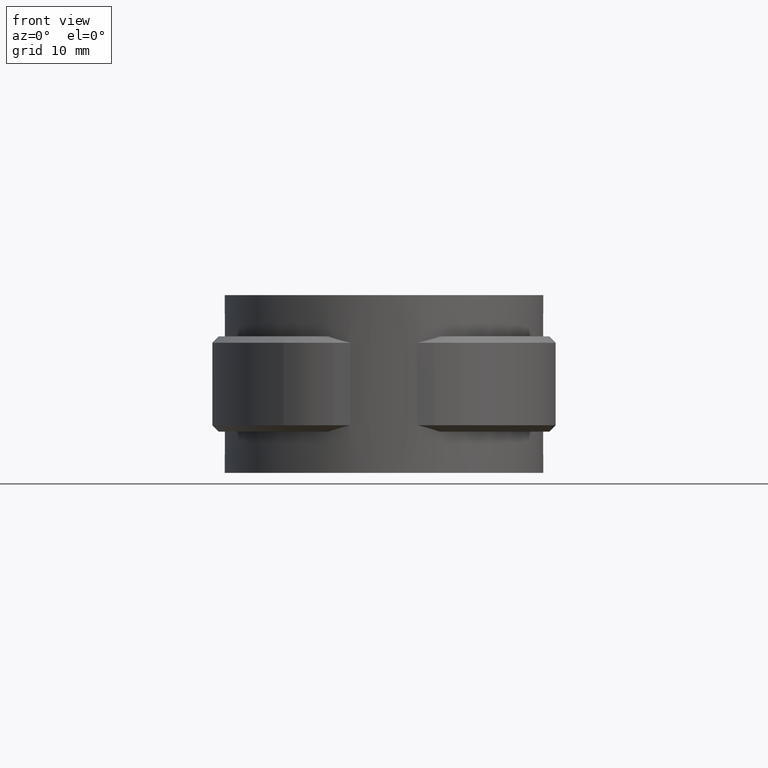
[diagram: clean part render]
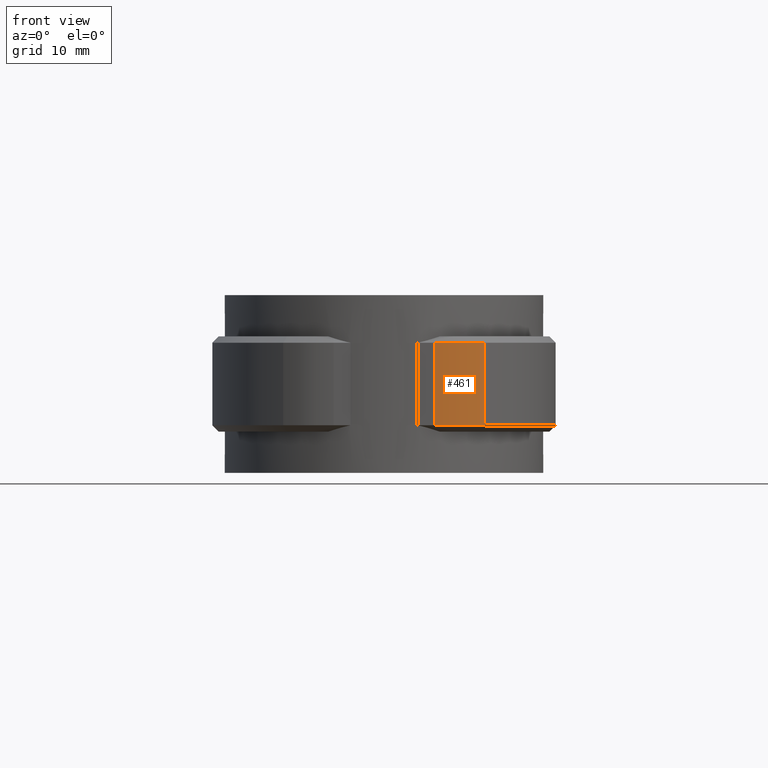
[diagram: same view with one face highlighted and labeled with its STEP entity id]
A machine part, front view. The second image highlights one B-rep face of the part: STEP entity #461.
In plain terms, the highlighted cylindrical surface (partial cylindrical patch) has radius 13.6 mm, axis along (0, 0, 1).
Its self-contained STEP definition (entity closure, byte-faithful):
#461 = ADVANCED_FACE( '', ( #917 ), #918, .T. );
#917 = FACE_OUTER_BOUND( '', #1993, .T. );
#918 = CYLINDRICAL_SURFACE( '', #1994, 13.6000000000000 );
#1993 = EDGE_LOOP( '', ( #4623, #4624, #4625, #4626 ) );
#1994 = AXIS2_PLACEMENT_3D( '', #4627, #4628, #4629 );
#4623 = ORIENTED_EDGE( '', *, *, #6908, .T. );
#4624 = ORIENTED_EDGE( '', *, *, #6915, .T. );
#4625 = ORIENTED_EDGE( '', *, *, #6916, .F. );
#4626 = ORIENTED_EDGE( '', *, *, #6917, .T. );
#4627 = CARTESIAN_POINT( '', ( 7.90550795331962, -10.9370000000000, -20.0000000000000 ) );
#4628 = DIRECTION( '', ( 0.000000000000000, 0.000000000000000, 1.00000000000000 ) );
#4629 = DIRECTION( '', ( 0.209705966713379, 0.977764494919307, 0.000000000000000 ) );
#6908 = EDGE_CURVE( '', #8060, #8058, #8061, .T. );
#6915 = EDGE_CURVE( '', #8058, #8068, #8071, .T. );
#6916 = EDGE_CURVE( '', #7930, #8068, #8072, .T. );
#6917 = EDGE_CURVE( '', #7930, #8060, #8073, .T. );
#7930 = VERTEX_POINT( '', #10995 );
#8058 = VERTEX_POINT( '', #11322 );
#8060 = VERTEX_POINT( '', #11324 );
#8061 = LINE( '', #11325, #11326 );
#8068 = VERTEX_POINT( '', #11337 );
#8071 = CIRCLE( '', #11342, 13.6000000000000 );
#8072 = LINE( '', #11343, #11344 );
#8073 = CIRCLE( '', #11345, 13.6000000000000 );
#10995 = CARTESIAN_POINT( '', ( 7.90550795331962, -24.5370000000000, -19.0000000000000 ) );
#11322 = CARTESIAN_POINT( '', ( 15.8725259722264, -21.9590970729900, -6.00000000000000 ) );
#11324 = CARTESIAN_POINT( '', ( 15.8725259722264, -21.9590970729900, -19.0000000000000 ) );
#11325 = CARTESIAN_POINT( '', ( 15.8725259722264, -21.9590970729900, -20.0000000000000 ) );
#11326 = VECTOR( '', #13193, 1000.00000000000 );
#11337 = CARTESIAN_POINT( '', ( 7.90550795331962, -24.5370000000000, -6.00000000000000 ) );
#11342 = AXIS2_PLACEMENT_3D( '', #13203, #13204, #13205 );
#11343 = CARTESIAN_POINT( '', ( 7.90550795331962, -24.5370000000000, -20.0000000000000 ) );
#11344 = VECTOR( '', #13206, 1000.00000000000 );
#11345 = AXIS2_PLACEMENT_3D( '', #13207, #13208, #13209 );
#13193 = DIRECTION( '', ( 0.000000000000000, 0.000000000000000, 1.00000000000000 ) );
#13203 = CARTESIAN_POINT( '', ( 7.90550795331962, -10.9370000000000, -6.00000000000000 ) );
#13204 = DIRECTION( '', ( 0.000000000000000, 0.000000000000000, -1.00000000000000 ) );
#13205 = DIRECTION( '', ( -1.00000000000000, 0.000000000000000, 0.000000000000000 ) );
#13206 = DIRECTION( '', ( 0.000000000000000, 0.000000000000000, 1.00000000000000 ) );
#13207 = CARTESIAN_POINT( '', ( 7.90550795331962, -10.9370000000000, -19.0000000000000 ) );
#13208 = DIRECTION( '', ( 0.000000000000000, 0.000000000000000, 1.00000000000000 ) );
#13209 = DIRECTION( '', ( 1.00000000000000, 0.000000000000000, 0.000000000000000 ) );